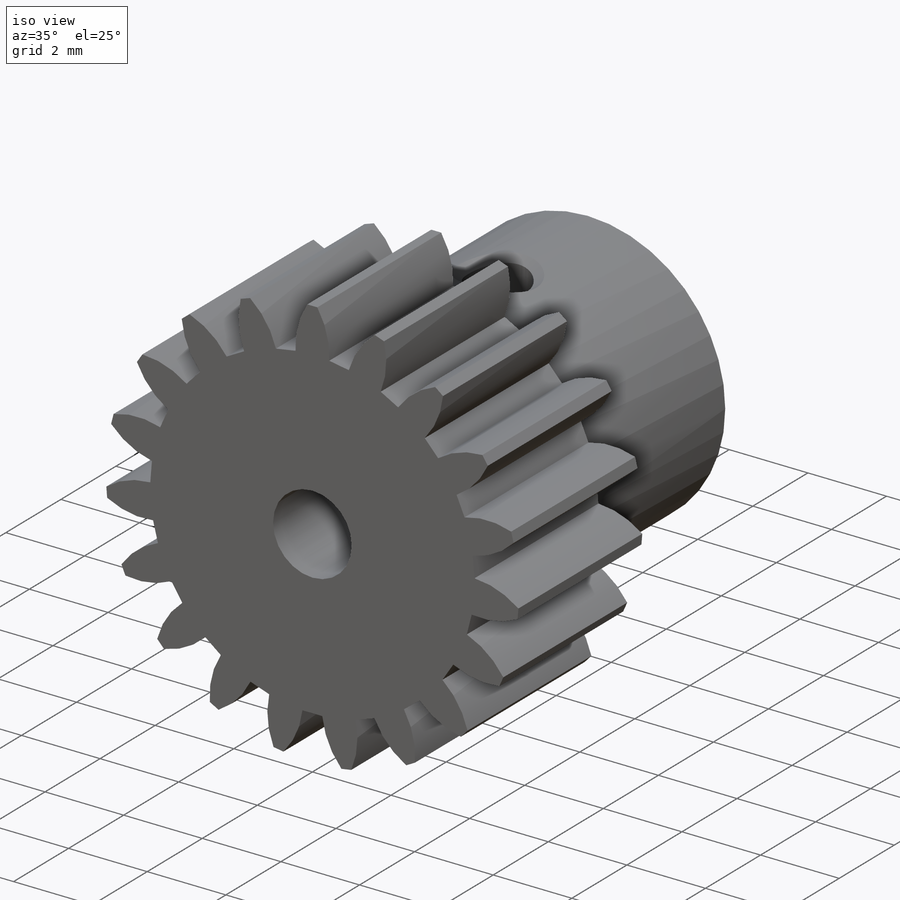
[diagram: iso view]
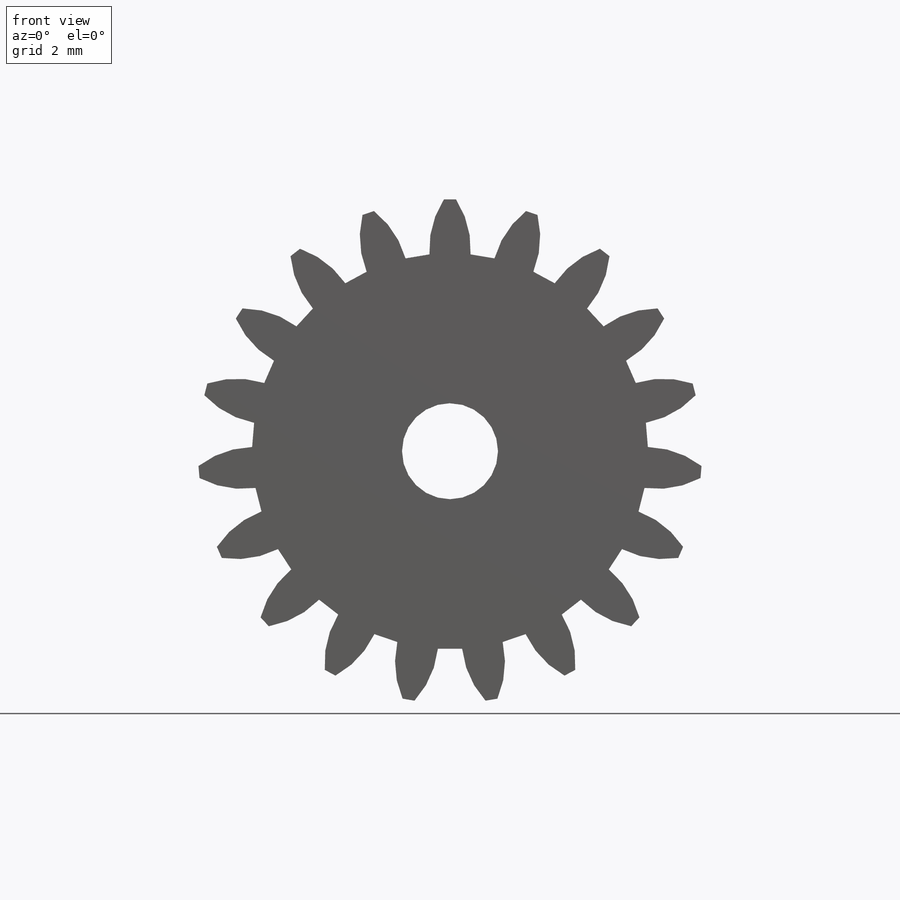
[diagram: front view]
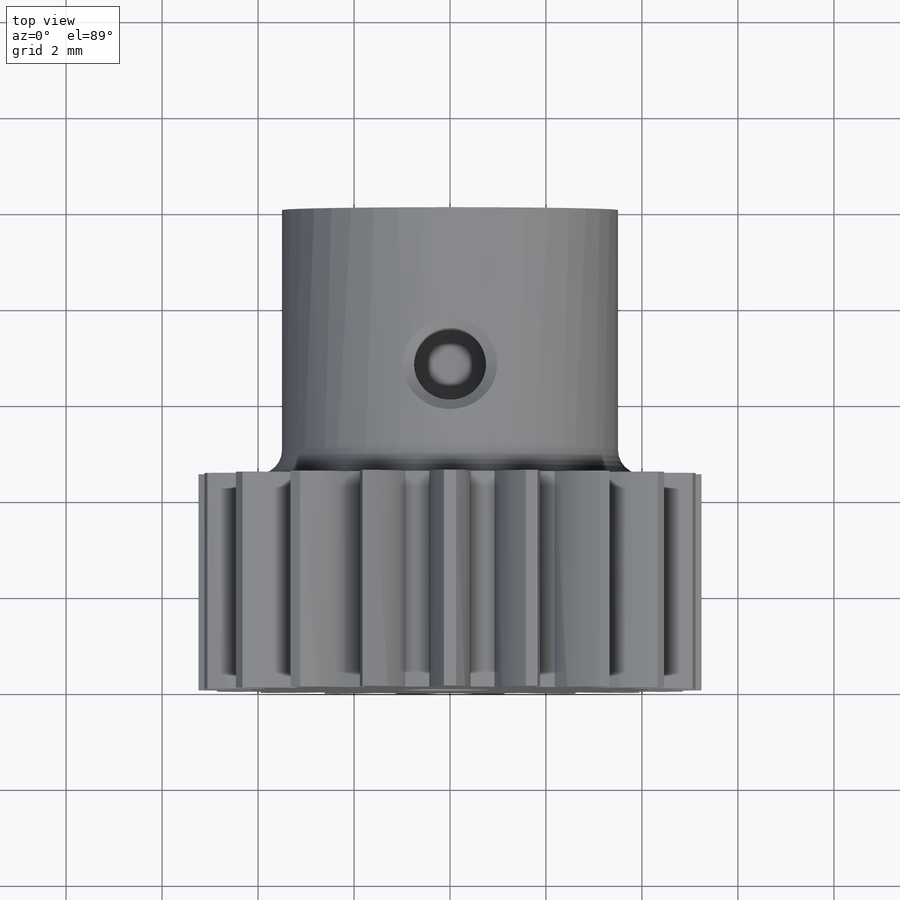
[diagram: top view]
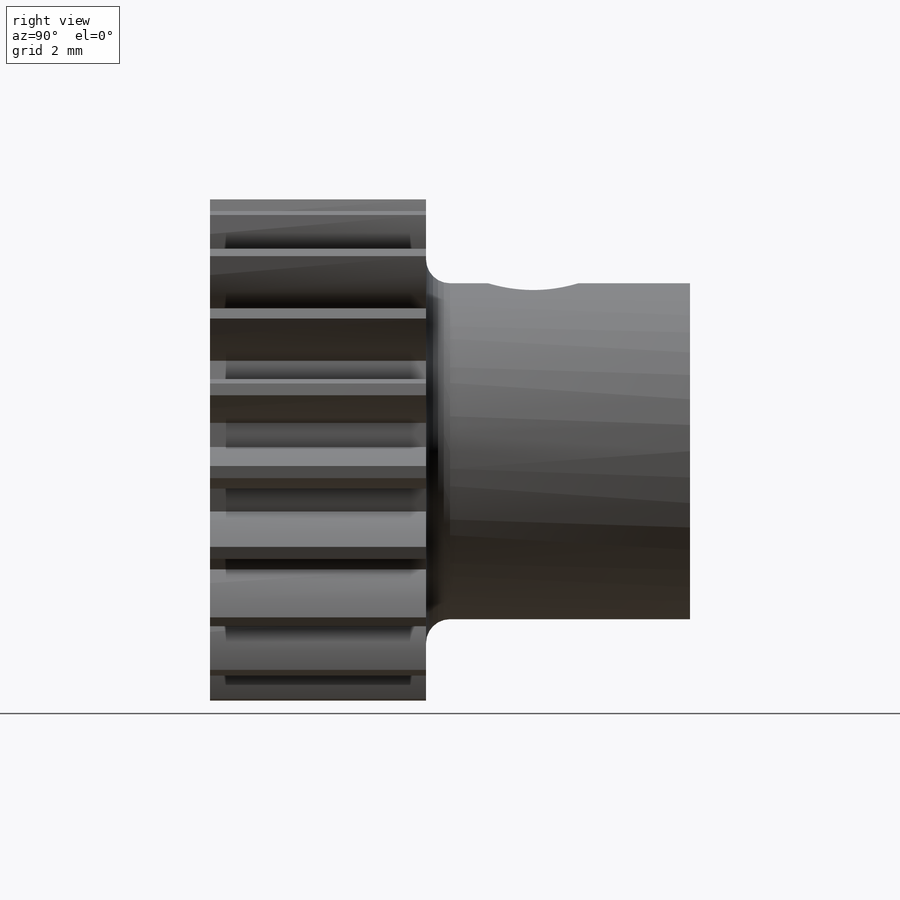
[diagram: right view]
SOLIDWORKS PART (.sldprt)
format: sldprt  version: not decoded by parser v0  size: 401,920 bytes
history: native  units: mm
features: plane x7, sketch x3, cut_extrude x2, material x1, move_body x1, extrude x1, chamfer x1, fillet x1 + 4 further entries (+14 scaffold rows collapsed; 3 parser-record rows omitted)
feature tree (38):
  scaffold x14  (default folders/planes/origin — collapsed)
  material  "PVC hart"
  plane  "Ebene vorne"
  plane  "Ebene oben"
  plane  "Ebene rechts"
  plane  "Plane1-DIN - Spur gear 0.5M 19T 20PA 5FW ---S19A75H50L2N"
  plane  "Plane2-DIN - Spur gear 0.5M 19T 20PA 5FW ---S19A75H50L2N"
  plane  "Plane3-DIN - Spur gear 0.5M 19T 20PA 5FW ---S19A75H50L2N"
  plane  "FarPln-DIN - Spur gear 0.5M 19T 20PA 5FW ---S19A75H50L2N"
  "DIN - Spur gear 0.5M 19T 20PA 5FW ---S19A75H50L2N"
  parser-record x3  (decoder bookkeeping rows leaked as tree rows — omitted from the tree; the rows remain in map.json)
  move_body  "Körper-Verschieben/Kopieren2"
  "Deckungsgleich2"
  "Deckungsgleich3"
  "Deckungsgleich4"
  sketch  "Skizze1"  dims[D1=4.5mm]
  cut_extrude  "Schnitt-Linear austragen1"  [1 undecoded]
  sketch  "Skizze2"  dims[D1=7.0mm]
  extrude  "Aufsatz-Linear austragen1"  Depth=10mm
  sketch  "Skizze3"  dims[D1=1.5mm]
  cut_extrude  "Schnitt-Linear austragen2"  [1 undecoded]
  chamfer  "Fase1"  Distance=0.25mm Angle=45deg
  fillet  "Verrundung1"  Radius=0.5mm
decode coverage: 6 of 9 modeling features carry decoded parameters; 4 rows unclassified (native names shown)
note: 2 parameter values undecoded
note: suppression state not decoded; provenance and decode notes live in map.json
